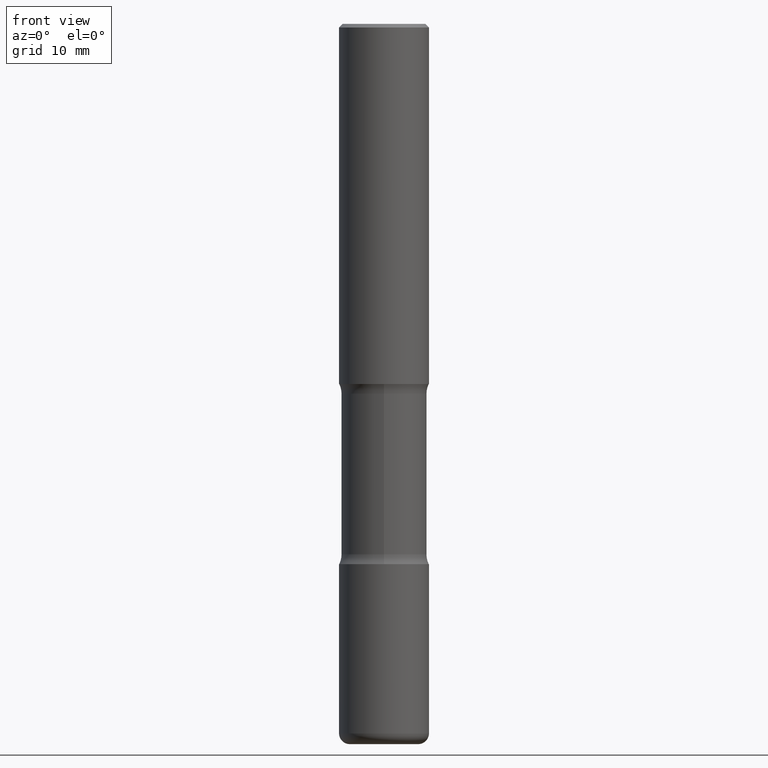
[diagram: clean part render]
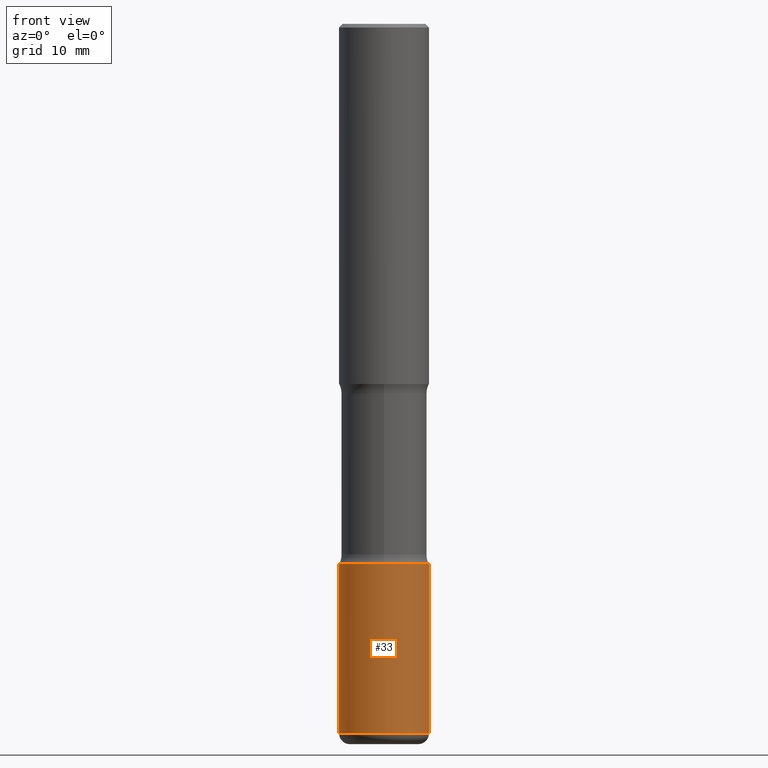
[diagram: same view with one face highlighted and labeled with its STEP entity id]
A machine part, front view. The second image highlights one B-rep face of the part: STEP entity #33.
In plain terms, the highlighted cylindrical surface (partial cylindrical patch) has radius 6.35 mm, axis along (-0, 0, 1).
Its self-contained STEP definition (entity closure, byte-faithful):
#24 = VECTOR ( 'NONE', #101, 39.37007874015748143 ) ;
#33 = ADVANCED_FACE ( 'NONE', ( #301 ), #63, .T. ) ;
#37 = AXIS2_PLACEMENT_3D ( 'NONE', #549, #388, #208 ) ;
#56 = CARTESIAN_POINT ( 'NONE',  ( 9.635147096369438236E-29, -1.375643647504199401E-14, -3.939999999999999947 ) ) ;
#63 = CYLINDRICAL_SURFACE ( 'NONE', #240, 0.2500000000000003331 ) ;
#101 = DIRECTION ( 'NONE',  ( -2.445468806185136877E-29, 3.491481338843145188E-15, 1.000000000000000000 ) ) ;
#103 = VECTOR ( 'NONE', #256, 39.37007874015748143 ) ;
#105 = CARTESIAN_POINT ( 'NONE',  ( -0.2500000000000002776, -1.033908340638546235E-14, -3.000000000000000444 ) ) ;
#127 = CARTESIAN_POINT ( 'NONE',  ( -0.2500000000000003331, 1.776356839400252831E-15, -1.229733772563727987E-29 ) ) ;
#140 = CARTESIAN_POINT ( 'NONE',  ( 0.2500000000000003331, -1.550217714446356385E-14, -3.939999999999999947 ) ) ;
#165 = CARTESIAN_POINT ( 'NONE',  ( 0.2500000000000002776, -1.222018468595100619E-14, -3.000000000000000444 ) ) ;
#183 = CARTESIAN_POINT ( 'NONE',  ( 0.2500000000000003331, -1.745740669421569044E-15, 1.219044193948985630E-29 ) ) ;
#190 = CARTESIAN_POINT ( 'NONE',  ( 0.000000000000000000, 0.000000000000000000, 0.000000000000000000 ) ) ;
#191 = DIRECTION ( 'NONE',  ( 1.000000000000000000, -6.982962677686266711E-15, 4.876176775795935793E-29 ) ) ;
#196 = EDGE_CURVE ( 'NONE', #477, #222, #285, .T. ) ;
#208 = DIRECTION ( 'NONE',  ( 1.000000000000000000, -6.982962677686270655E-15, 0.000000000000000000 ) ) ;
#217 = DIRECTION ( 'NONE',  ( -2.445468806185136597E-29, 3.491481338843145583E-15, 1.000000000000000000 ) ) ;
#222 = VERTEX_POINT ( 'NONE', #165 ) ;
#240 = AXIS2_PLACEMENT_3D ( 'NONE', #190, #321, #191 ) ;
#242 = EDGE_CURVE ( 'NONE', #344, #477, #498, .T. ) ;
#256 = DIRECTION ( 'NONE',  ( -2.445468806185136877E-29, 3.491481338843145188E-15, 1.000000000000000000 ) ) ;
#257 = EDGE_LOOP ( 'NONE', ( #269, #437, #401, #406 ) ) ;
#269 = ORIENTED_EDGE ( 'NONE', *, *, #242, .F. ) ;
#285 = CIRCLE ( 'NONE', #37, 0.2500000000000002776 ) ;
#301 = FACE_OUTER_BOUND ( 'NONE', #257, .T. ) ;
#319 = DIRECTION ( 'NONE',  ( 1.000000000000000000, -6.982962677686267499E-15, 0.000000000000000000 ) ) ;
#321 = DIRECTION ( 'NONE',  ( -2.445468806185136597E-29, 3.491481338843145583E-15, 1.000000000000000000 ) ) ;
#336 = AXIS2_PLACEMENT_3D ( 'NONE', #56, #217, #319 ) ;
#344 = VERTEX_POINT ( 'NONE', #438 ) ;
#347 = CIRCLE ( 'NONE', #336, 0.2500000000000003886 ) ;
#353 = VERTEX_POINT ( 'NONE', #140 ) ;
#362 = LINE ( 'NONE', #183, #24 ) ;
#388 = DIRECTION ( 'NONE',  ( -2.445468806185136597E-29, 3.491481338843145583E-15, 1.000000000000000000 ) ) ;
#401 = ORIENTED_EDGE ( 'NONE', *, *, #458, .T. ) ;
#406 = ORIENTED_EDGE ( 'NONE', *, *, #196, .F. ) ;
#426 = EDGE_CURVE ( 'NONE', #344, #353, #347, .T. ) ;
#437 = ORIENTED_EDGE ( 'NONE', *, *, #426, .T. ) ;
#438 = CARTESIAN_POINT ( 'NONE',  ( -0.2500000000000003331, -1.198007963564174197E-14, -3.939999999999999947 ) ) ;
#458 = EDGE_CURVE ( 'NONE', #353, #222, #362, .T. ) ;
#477 = VERTEX_POINT ( 'NONE', #105 ) ;
#498 = LINE ( 'NONE', #127, #103 ) ;
#549 = CARTESIAN_POINT ( 'NONE',  ( 7.336406418555409790E-29, -1.047444401652943635E-14, -3.000000000000000444 ) ) ;